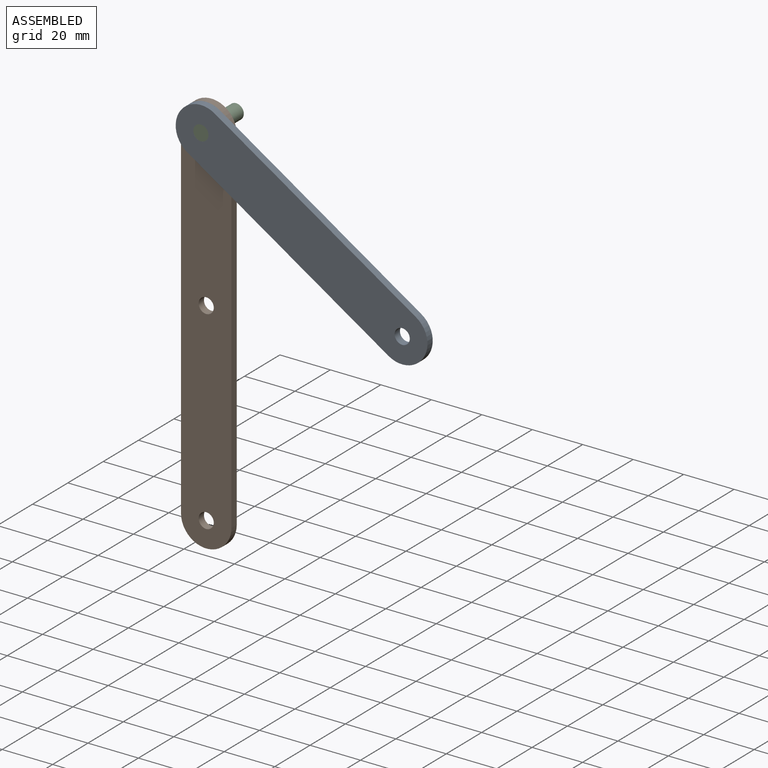
[diagram: assembled view]
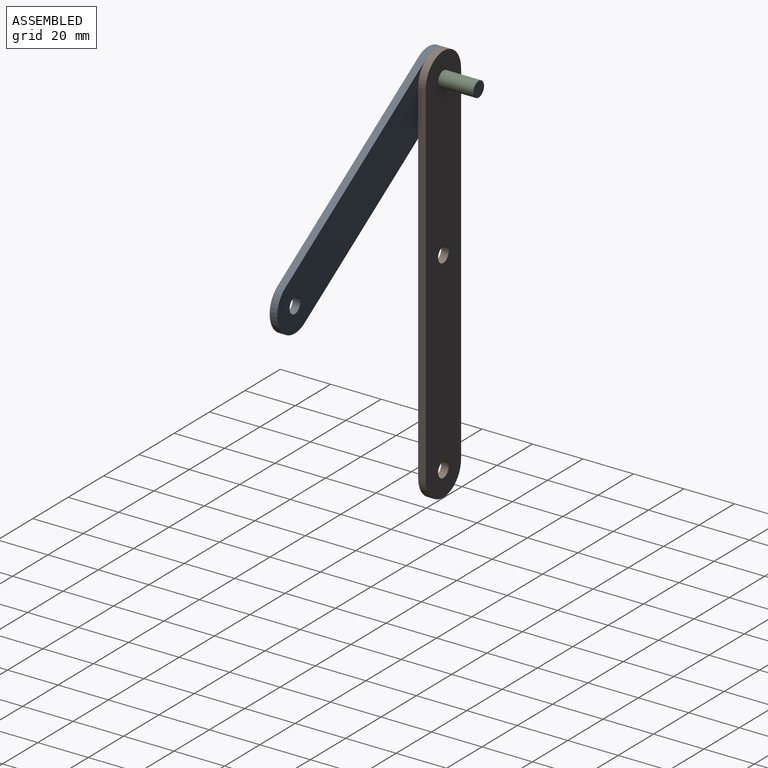
[diagram: assembled view, second angle]
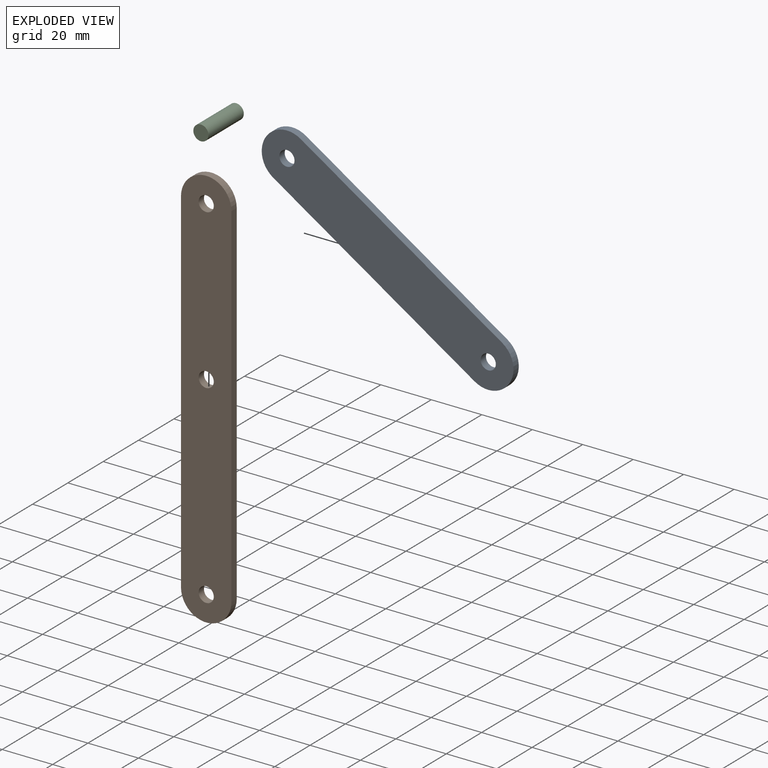
[diagram: exploded view]
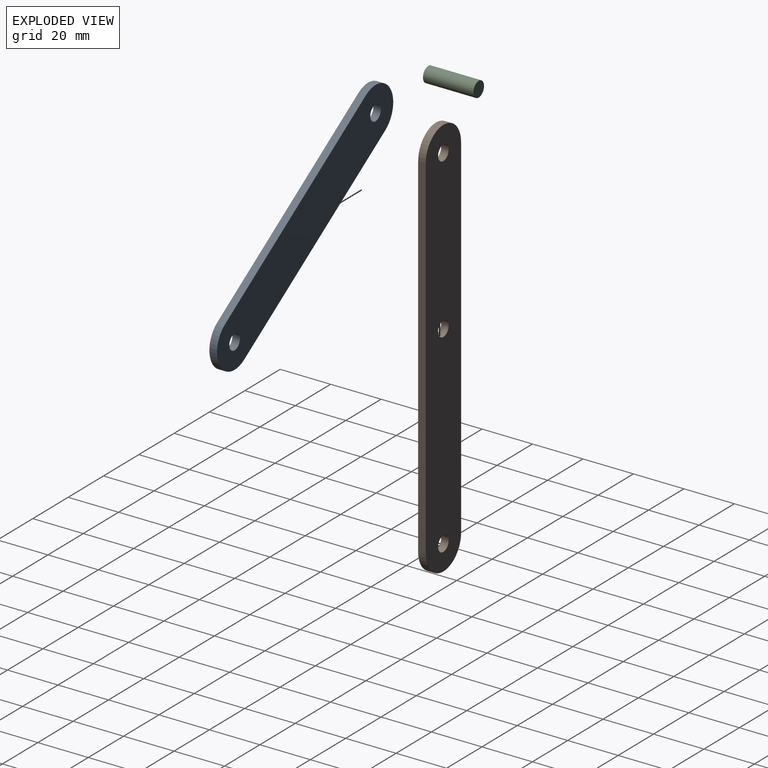
[diagram: exploded view, second angle]
ASSEMBLY  parts=3 mates=2
PART A: 8 faces, bbox 20x3x115 mm
  f0: cylinder r=10mm len=20mm, axis (0,1,0), area 94.2mm2, adj f1,f3,f4,f5
  f1: plane 95x3mm, normal (-1,0,0), area 285mm2, adj f0,f2,f4,f5
  f2: cylinder r=10mm len=20mm, axis (0,1,0), area 94.2mm2, adj f1,f3,f4,f5
  f3: plane 95x3mm, normal (1,0,0), area 285mm2, adj f0,f2,f4,f5
  f4: plane 115x20mm, normal (0,-1,0), area 2157.6mm2, adj f0,f1,f2,f3,f6,f7
  f5: plane 115x20mm, normal (0,1,0), area 2157.6mm2, adj f0,f1,f2,f3,f6,f7
  f6: cylinder r=3mm len=6mm, axis (0,-1,0), area 56.5mm2, adj f4,f5
  f7: cylinder r=3mm len=6mm, axis (0,-1,0), area 56.5mm2, adj f4,f5
PART B: 9 faces, bbox 20x3x160 mm
  f0: cylinder r=10mm len=20mm, axis (0,1,0), area 94.2mm2, adj f1,f3,f4,f5
  f1: plane 140x3mm, normal (-1,0,0), area 420mm2, adj f0,f2,f4,f5
  f2: cylinder r=10mm len=20mm, axis (0,1,0), area 94.2mm2, adj f1,f3,f4,f5
  f3: plane 140x3mm, normal (1,0,0), area 420mm2, adj f0,f2,f4,f5
  f4: plane 160x20mm, normal (0,-1,0), area 3029.3mm2, adj f0,f1,f2,f3,f6,f7,f8
  f5: plane 160x20mm, normal (0,1,0), area 3029.3mm2, adj f0,f1,f2,f3,f6,f7,f8
  f6: cylinder r=3mm len=6mm, axis (0,-1,0), area 56.5mm2, adj f4,f5
  f7: cylinder r=3mm len=6mm, axis (0,-1,0), area 56.5mm2, adj f4,f5
  f8: cylinder r=3mm len=6mm, axis (0,-1,0), area 56.5mm2, adj f4,f5
PART C: 3 faces, bbox 6x20x6 mm
  f0: cylinder r=3mm len=20mm, axis (0,1,0), area 377mm2, adj f1,f2
  f1: plane 6x6mm, normal (0,-1,0), area 28.3mm2, adj f0
  f2: plane 6x6mm, normal (0,1,0), area 28.3mm2, adj f0
PLACE A rot(axis=(0,-1,0),57.1deg) t=(-124.72,-47.03,123.03)mm
PLACE B t=(-158.23,-44.03,64.7)mm fixed
PLACE C rot(axis=(0,-1,0),45.2deg) t=(-158.23,-30.03,144.7)mm
MATE revolute C.f0 <-> A.f0  axis (0,-1,0) through (-158.23,-50.03,144.7)mm
MATE revolute A.f0 <-> B.f7  axis (0,1,0) through (-158.23,-47.03,144.7)mm
